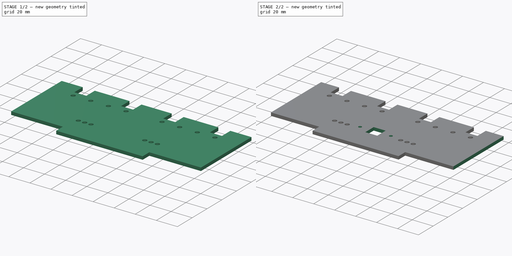
[diagram: build sequence overview — one tinted view per stage of 2, left to right]
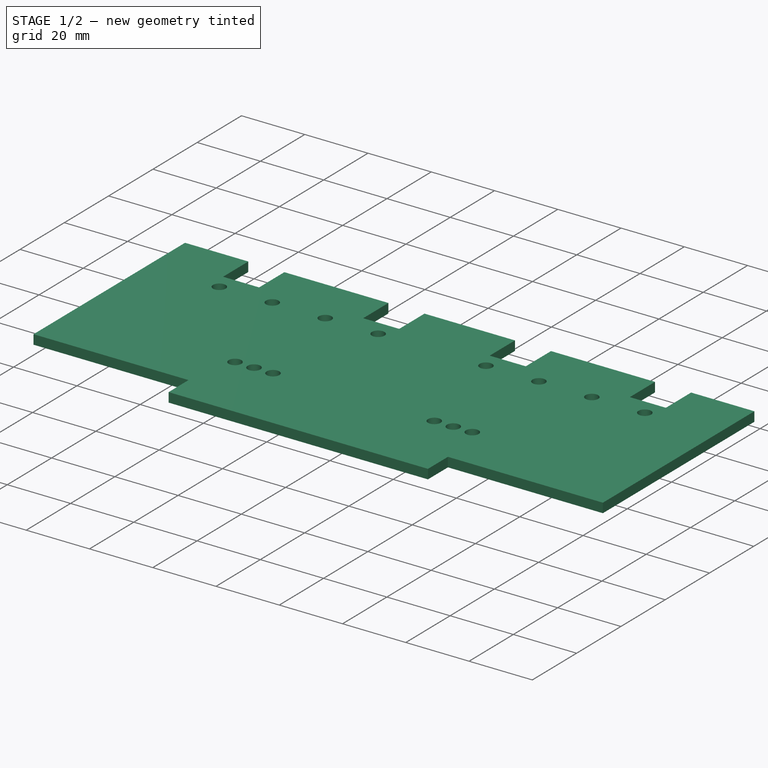
[diagram: stage 1 of 2 — iso view after this stage's code; geometry added in this stage tinted green]
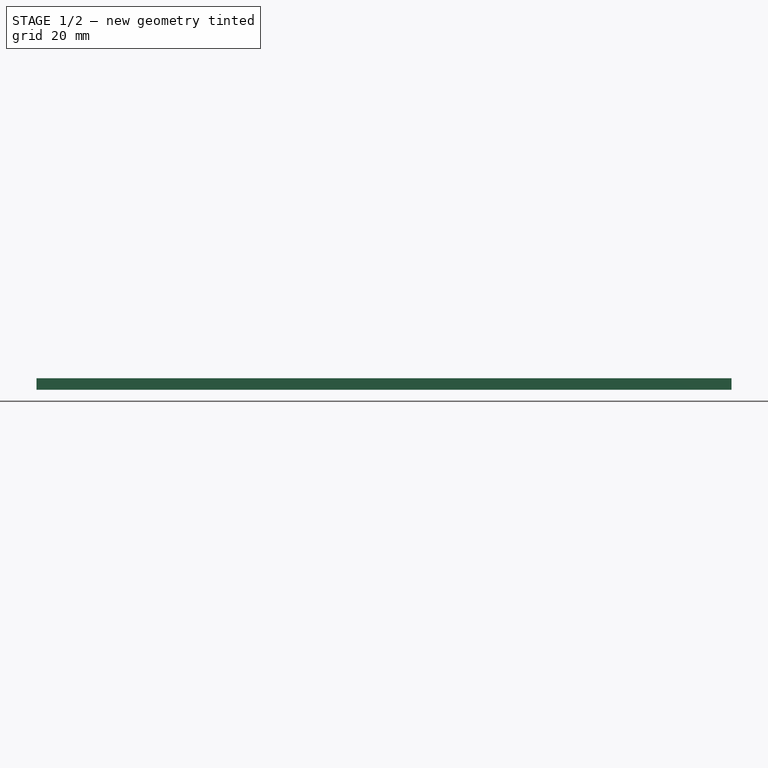
[diagram: stage 1 of 2 — front view after this stage's code; geometry added in this stage tinted green]
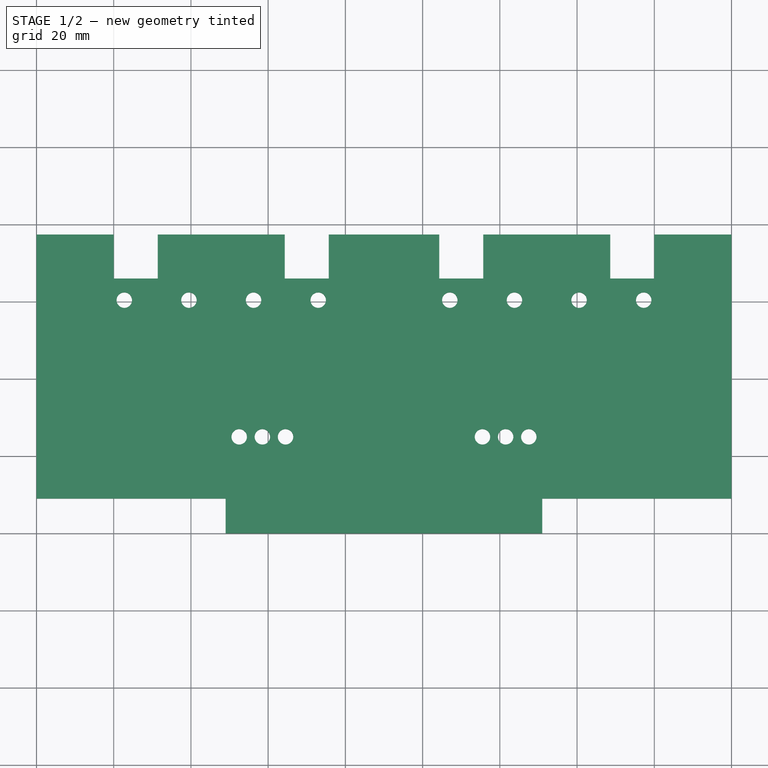
[diagram: stage 1 of 2 — top view after this stage's code; geometry added in this stage tinted green]
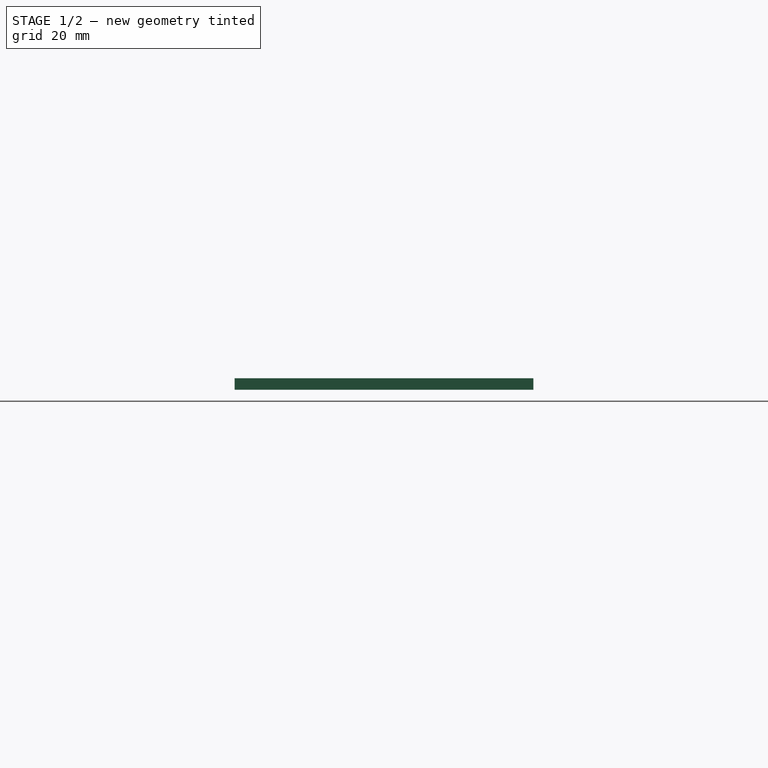
[diagram: stage 1 of 2 — right view after this stage's code; geometry added in this stage tinted green]
FCSTD DOCUMENT  (FreeCAD 0.16R6707 (Git))
Label: support
License: All rights reserved
LicenseURL: http://en.wikipedia.org/wiki/All_rights_reserved
objects: Sketcher::SketchObject×2, PartDesign::Pad×1, PartDesign::Mirrored×1, PartDesign::Pocket×1, Drawing::FeatureViewPart×1, Drawing::FeaturePage×1
note: 7 computed .brp shape members not serialized (recipe doc carries the construction recipe); baked Part::Feature solids carry a one-line shape summary decoded from their .brp

FEATURE [Sketcher::SketchObject] Sketch
  sketch-geometry (23):
    g0: GeomPoint [constr] X=58.5 Y=2 Z=0
    g1: GeomPoint [constr] X=48 Y=28 Z=0
    g2: Circle CenterX=52.5 CenterY=25 CenterZ=0 NormalX=0 NormalY=0 NormalZ=1 Radius=2
    g3: Circle CenterX=58.5 CenterY=25 CenterZ=0 NormalX=0 NormalY=0 NormalZ=1 Radius=2
    g4: Circle CenterX=64.5 CenterY=25 CenterZ=0 NormalX=0 NormalY=0 NormalZ=1 Radius=2
    g5: Circle CenterX=22.74 CenterY=60.4 CenterZ=0 NormalX=0 NormalY=0 NormalZ=1 Radius=2
    g6: Circle CenterX=39.48 CenterY=60.4 CenterZ=0 NormalX=0 NormalY=0 NormalZ=1 Radius=2
    g7: Circle CenterX=56.22 CenterY=60.4 CenterZ=0 NormalX=0 NormalY=0 NormalZ=1 Radius=2
    g8: Circle CenterX=72.96 CenterY=60.4 CenterZ=0 NormalX=0 NormalY=0 NormalZ=1 Radius=2
    g9: LineSegment StartX=0 StartY=77.4 StartZ=0 EndX=20 EndY=77.4 EndZ=0
    g10: LineSegment StartX=20 StartY=77.4 StartZ=0 EndX=20 EndY=66 EndZ=0
    g11: LineSegment StartX=20 StartY=66 StartZ=0 EndX=31.4 EndY=66 EndZ=0
    g12: LineSegment StartX=31.4 StartY=66 StartZ=0 EndX=31.4 EndY=77.4 EndZ=0
    g13: LineSegment StartX=31.4 StartY=77.4 StartZ=0 EndX=64.3 EndY=77.4 EndZ=0
    g14: LineSegment StartX=64.3 StartY=77.4 StartZ=0 EndX=64.3 EndY=66 EndZ=0
    g15: LineSegment StartX=64.3 StartY=66 StartZ=0 EndX=75.7 EndY=66 EndZ=0
    g16: LineSegment StartX=75.7 StartY=66 StartZ=0 EndX=75.7 EndY=77.4 EndZ=0
    g17: LineSegment StartX=75.7 StartY=77.4 StartZ=0 EndX=90 EndY=77.4 EndZ=0
    g18: LineSegment StartX=90 StartY=77.4 StartZ=0 EndX=90 EndY=0 EndZ=0
    g19: LineSegment StartX=0 StartY=77.4 StartZ=0 EndX=0 EndY=9 EndZ=0
    g20: LineSegment StartX=0 StartY=9 StartZ=0 EndX=49 EndY=9 EndZ=0
    g21: LineSegment StartX=49 StartY=9 StartZ=0 EndX=49 EndY=0 EndZ=0
    g22: LineSegment StartX=49 StartY=0 StartZ=0 EndX=90 EndY=0 EndZ=0
  constraints (67):
    c: DistanceX(g0) = 58.5
    c: DistanceY(g0) = 2
    c: DistanceY(g0,g1) = 26
    c: DistanceX(g1,g0) = 10.5
    c: DistanceY(g2,g1) = 3
    c: DistanceY(g3,g2) = 0
    c: DistanceY(g3,g4) = 0
    c: Radius(g2) = 2
    c: Equal(g2,g3)
    c: Equal(g2,g4)
    c: DistanceX(g1,g2) = 4.5
    c: DistanceX(g2,g3) = 6
    c: DistanceX(g3,g4) = 6
    c: Horizontal(g9)
    c: Coincident(g9,g10)
    c: Vertical(g10)
    c: Coincident(g10,g11)
    c: Horizontal(g11)
    c: Coincident(g11,g12)
    c: Vertical(g12)
    c: Coincident(g12,g13)
    c: Horizontal(g13)
    c: Coincident(g13,g14)
    c: Vertical(g14)
    c: Coincident(g14,g15)
    c: Horizontal(g15)
    c: Coincident(g15,g16)
    c: Vertical(g16)
    c: Coincident(g16,g17)
    c: Horizontal(g17)
    c: Coincident(g17,g18)
    c: Vertical(g18)
    c: DistanceX(g18) = 90
    c: Distance(g10) = 11.4
    c: Distance(g11) = 11.4
    c: Distance(g12) = 11.4
    c: Distance(g13) = 32.9
    c: Distance(g14) = 11.4
    c: Distance(g15) = 11.4
    c: Distance(g16) = 11.4
    c: DistanceY(g5,g9) = 17
    c: DistanceY(g6,g5) = 0
    c: DistanceY(g7,g6) = 0
    c: DistanceY(g8,g7) = 0
    c: DistanceX(g5,g6) = 16.74
    c: DistanceX(g6,g7) = 16.74
    c: DistanceX(g7,g8) = 16.74
    c: DistanceX(g5) = 22.74
    c: Radius(g8) = 2
    c: Equal(g8,g7)
    c: Equal(g8,g6)
    c: Equal(g8,g5)
    c: DistanceY(g9) = 77.4
    c: Coincident(g9,g19)
    c: PointOnObject(g19,g-2)
    c: Vertical(g19)
    c: Coincident(g19,g20)
    c: Horizontal(g20)
    c: Coincident(g20,g21)
    c: PointOnObject(g21,g-1)
    c: Vertical(g21)
    c: Coincident(g21,g22)
    c: Coincident(g22,g18)
    c: Horizontal(g22)
    c: Distance(g21) = 9
    c: Distance(g20) = 49
    c: Distance(g17) = 14.3
FEATURE [PartDesign::Pad] Pad
  Length = 3
  Length2 = 100
  Sketch = -> Sketch
  Type = 0
FEATURE [PartDesign::Mirrored] Mirrored
  MirrorPlane = -> Pad [Face10]
  Originals = -> [Pad]
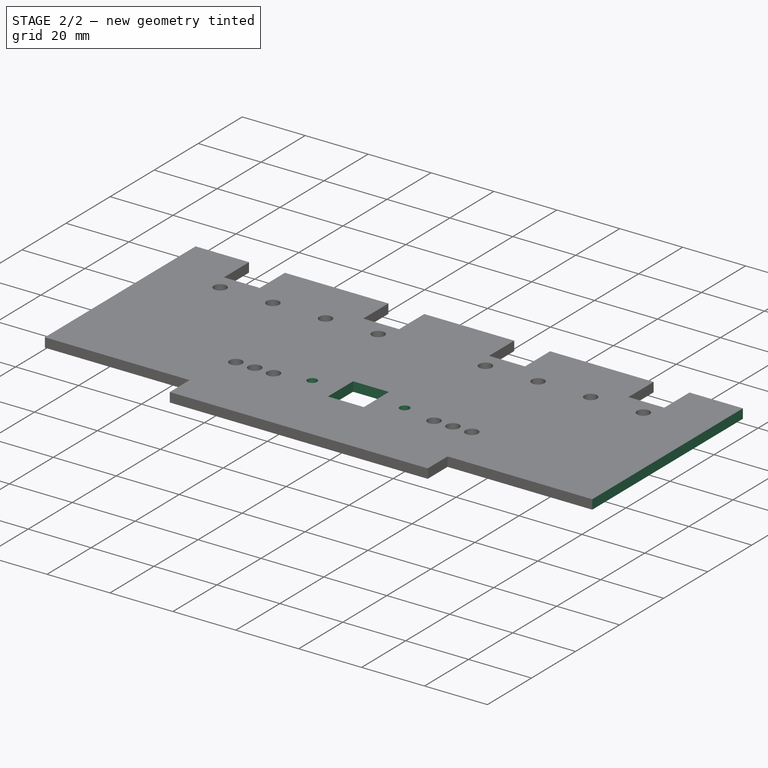
[diagram: stage 2 of 2 — iso view after this stage's code; geometry added in this stage tinted green]
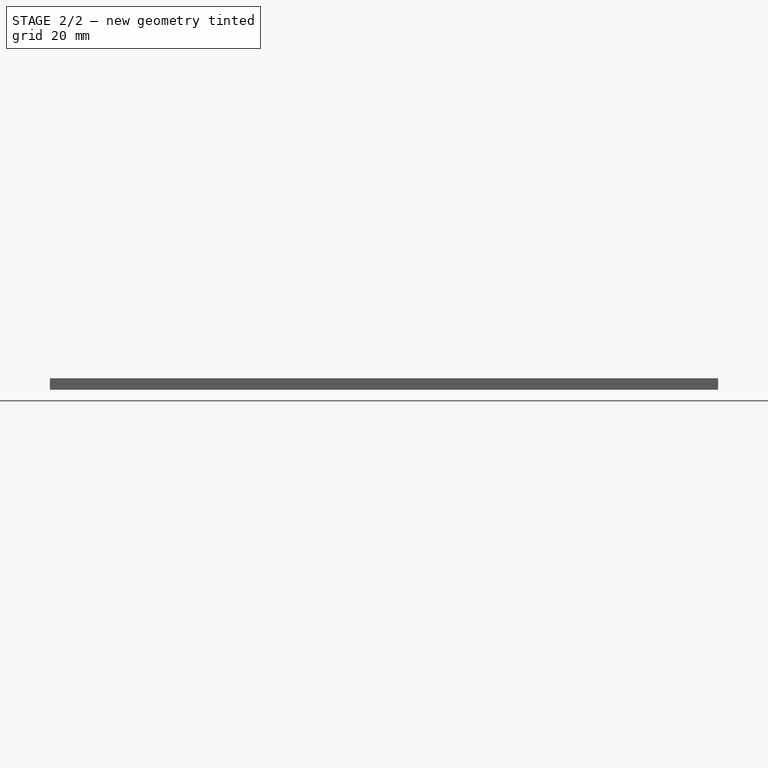
[diagram: stage 2 of 2 — front view after this stage's code; geometry added in this stage tinted green]
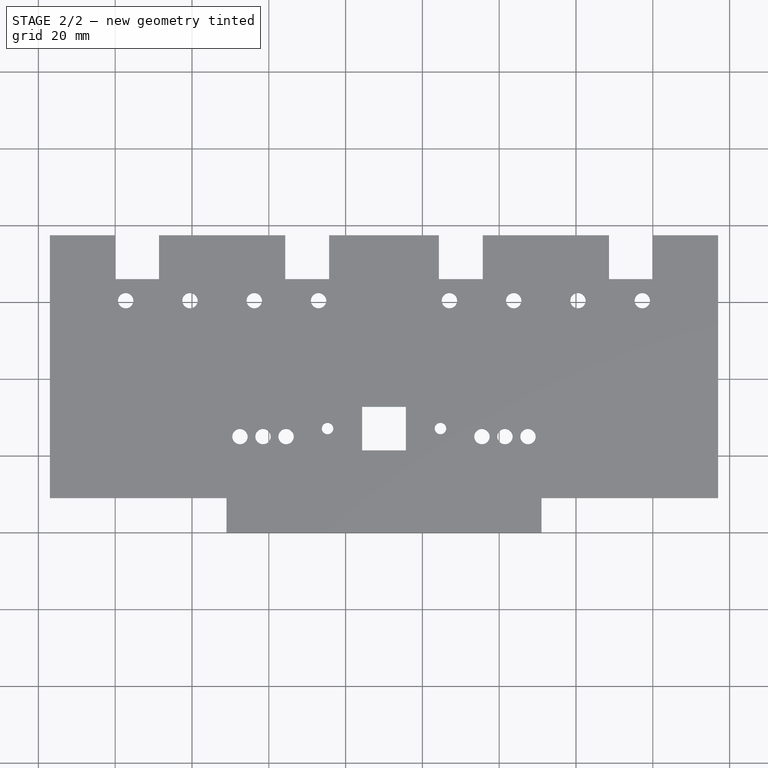
[diagram: stage 2 of 2 — top view after this stage's code; geometry added in this stage tinted green]
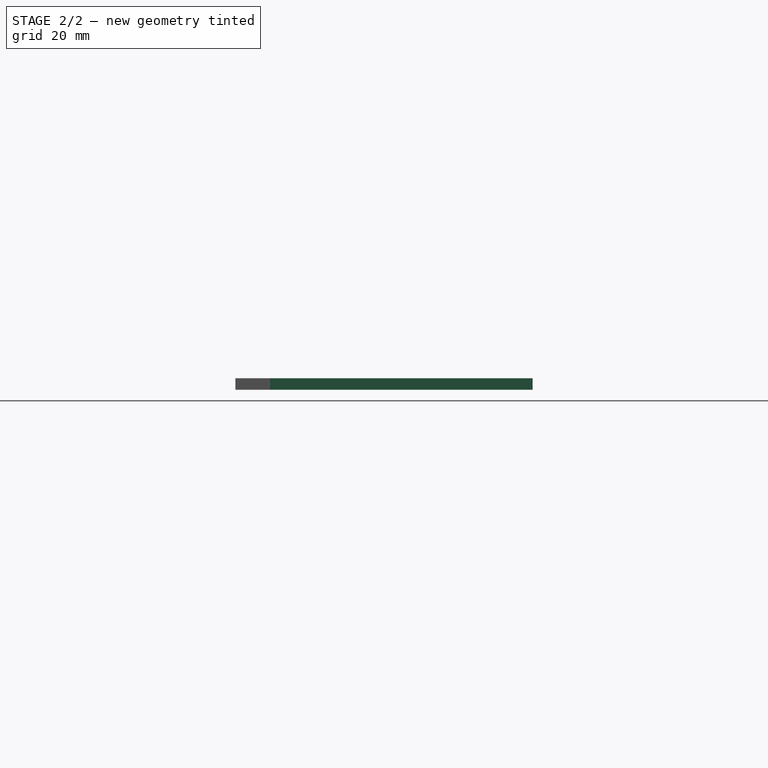
[diagram: stage 2 of 2 — right view after this stage's code; geometry added in this stage tinted green]
FEATURE [Sketcher::SketchObject] Sketch001
  Placement = pos=(0,0,3) rot=(0,0,1;0rad)
  Support = -> Mirrored [Face5]
  sketch-geometry (15):
    g0: LineSegment StartX=0 StartY=0 StartZ=0 EndX=3 EndY=0 EndZ=0
    g1: LineSegment StartX=3 StartY=0 StartZ=0 EndX=3 EndY=90.077 EndZ=0
    g2: LineSegment StartX=3 StartY=90.077 StartZ=0 EndX=0 EndY=90.077 EndZ=0
    g3: LineSegment StartX=0 StartY=90.077 StartZ=0 EndX=0 EndY=0 EndZ=0
    g4: LineSegment StartX=177 StartY=0 StartZ=0 EndX=180 EndY=0 EndZ=0
    g5: LineSegment StartX=180 StartY=0 StartZ=0 EndX=180 EndY=90.9225 EndZ=0
    g6: LineSegment StartX=180 StartY=90.9225 StartZ=0 EndX=177 EndY=90.9225 EndZ=0
    g7: LineSegment StartX=177 StartY=90.9225 StartZ=0 EndX=177 EndY=0 EndZ=0
    g8: GeomPoint [constr] X=84.3 Y=21.4 Z=0
    g9: LineSegment StartX=84.3 StartY=21.4 StartZ=0 EndX=95.7 EndY=21.4 EndZ=0
    g10: LineSegment StartX=95.7 StartY=21.4 StartZ=0 EndX=95.7 EndY=32.8 EndZ=0
    g11: LineSegment StartX=95.7 StartY=32.8 StartZ=0 EndX=84.3 EndY=32.8 EndZ=0
    g12: LineSegment StartX=84.3 StartY=32.8 StartZ=0 EndX=84.3 EndY=21.4 EndZ=0
    g13: Circle CenterX=104.7 CenterY=27.1 CenterZ=0 NormalX=0 NormalY=0 NormalZ=1 Radius=1.5
    g14: Circle CenterX=75.3 CenterY=27.1 CenterZ=0 NormalX=0 NormalY=0 NormalZ=1 Radius=1.5
  constraints (40):
    c: Coincident(g0,g1)
    c: Coincident(g1,g2)
    c: Coincident(g2,g3)
    c: Coincident(g3,g0)
    c: Horizontal(g0)
    c: Horizontal(g2)
    c: Vertical(g1)
    c: Vertical(g3)
    c: Coincident(g0,g-1)
    c: Coincident(g4,g5)
    c: Coincident(g5,g6)
    c: Coincident(g6,g7)
    c: Coincident(g7,g4)
    c: Horizontal(g4)
    c: Horizontal(g6)
    c: Vertical(g5)
    c: Vertical(g7)
    c: PointOnObject(g4,g-1)
    c: DistanceX(g4) = 177
    c: Distance(g4) = 3
    c: Distance(g2) = 3
    c: DistanceX(g8) = 84.3
    c: DistanceY(g8) = 21.4
    c: Coincident(g9,g10)
    c: Coincident(g10,g11)
    c: Coincident(g11,g12)
    c: Coincident(g12,g9)
    c: Horizontal(g9)
    c: Horizontal(g11)
    c: Vertical(g10)
    c: Vertical(g12)
    c: Coincident(g9,g8)
    c: Distance(g10) = 11.4
    c: Distance(g11) = 11.4
    c: DistanceX(g14,g8) = 9
    c: DistanceX(g9,g13) = 9
    c: DistanceY(g8,g14) = 5.7
    c: DistanceY(g9,g13) = 5.7
    c: Radius(g14) = 1.5
    c: Equal(g14,g13)
FEATURE [PartDesign::Pocket] Pocket
  Length = 5
  Sketch = -> Sketch001
  Type = 1
FEATURE [Drawing::FeatureViewPart] Ortho  label="Ortho_0_0"
  Direction = (0,0,1)
  HiddenWidth = 0.15
  LineWidth = 0.35
  Rotation = 0
  ShowHiddenLines = false
  ShowSmoothLines = false
  Source = -> Pocket
  Tolerance = 0.05
  ViewResult = <blob: 2373 chars omitted>
  Visible = true
  X = 120
  Y = 157.2
FEATURE [Drawing::FeaturePage] Page
  EditableTexts = AUTHOR NAME | CREATION DATE | SUPERVISOR NAME | CHECK DATE | SCALE | WEIGHT | NUMBER | SHEET | TITLE | SUBTITLE
  Group = -> [Ortho]
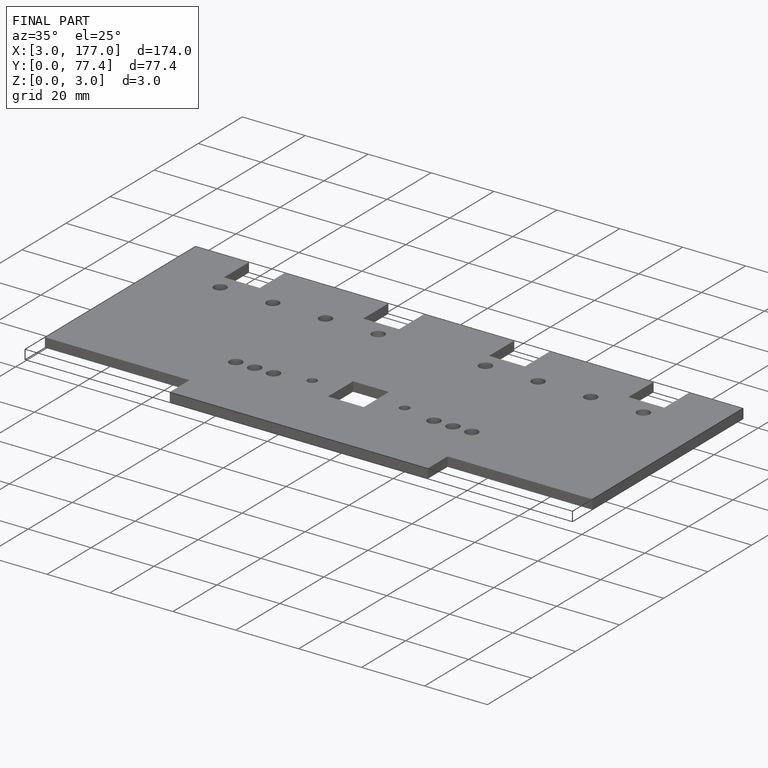
[diagram: finished part — iso view with bounding-box wireframe]
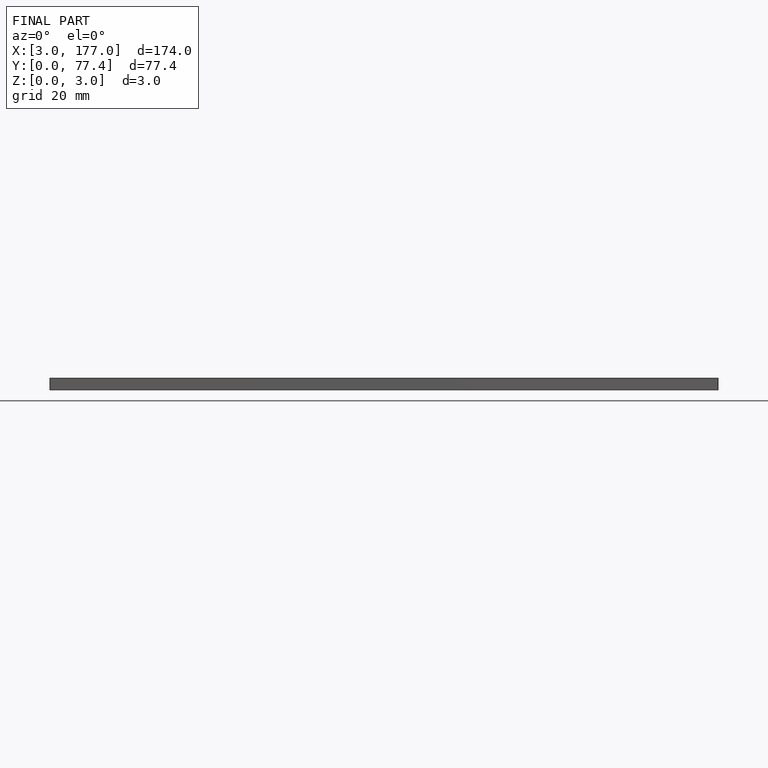
[diagram: finished part — front view with bounding-box wireframe]
